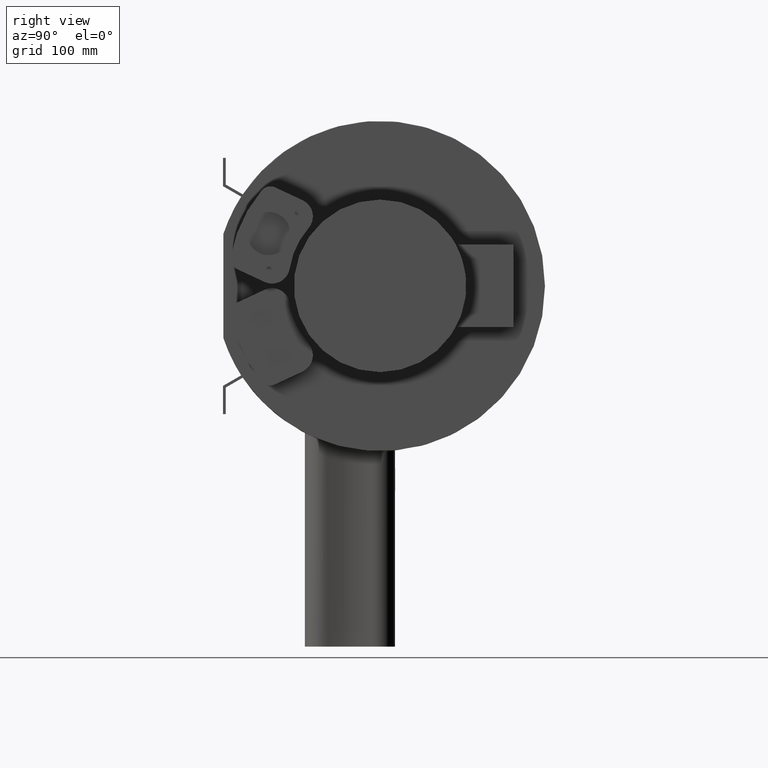
[diagram: clean part render]
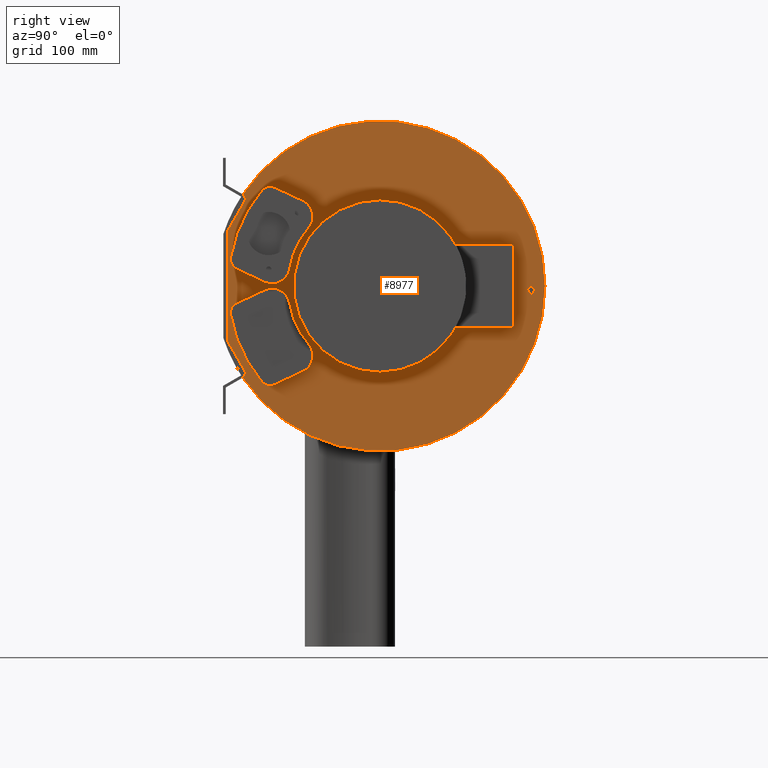
[diagram: same view with one face highlighted and labeled with its STEP entity id]
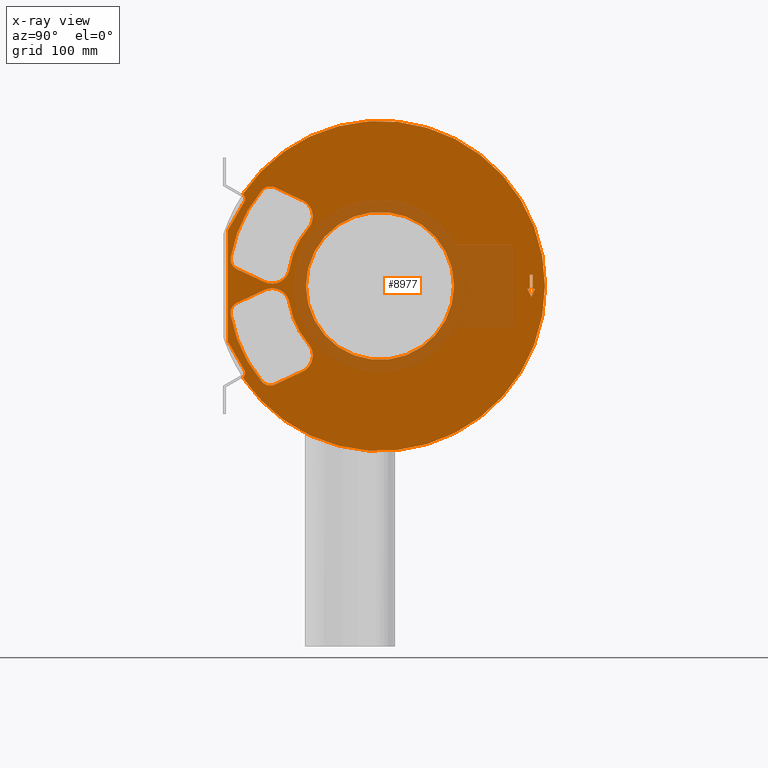
[diagram: x-ray of the same camera — body ghosted, the highlighted face saturated]
A machine part, right view. The second image highlights one B-rep face of the part: STEP entity #8977.
The next image is the same camera in x-ray: the body ghosted, the highlighted face saturated — about 18% of this face is hidden behind the body in this view.
In plain terms, the highlighted planar face has unit normal (1, 0, 0).
Its self-contained STEP definition (entity closure, byte-faithful):
#6507=CARTESIAN_POINT('',(140.5,134.5,-2.494225778216578));
#6508=VERTEX_POINT('',#6507);
#6515=CARTESIAN_POINT('',(140.5,132.5,-2.494225778216556));
#6516=VERTEX_POINT('',#6515);
#6517=CARTESIAN_POINT('',(140.5,132.5,-2.494225778216556));
#6518=DIRECTION('',(0.0,1.0,0.0));
#6519=VECTOR('',#6518,2.0);
#6520=LINE('',#6517,#6519);
#6521=EDGE_CURVE('',#6516,#6508,#6520,.T.);
#6545=CARTESIAN_POINT('',(140.5,134.5,10.000000000000007));
#6546=VERTEX_POINT('',#6545);
#6553=CARTESIAN_POINT('',(140.5,134.5,-2.494225778216578));
#6554=DIRECTION('',(0.0,0.0,1.0));
#6555=VECTOR('',#6554,12.494225778216585);
#6556=LINE('',#6553,#6555);
#6557=EDGE_CURVE('',#6508,#6546,#6556,.T.);
#6576=CARTESIAN_POINT('',(140.5,137.50000000000003,10.000000000000036));
#6577=VERTEX_POINT('',#6576);
#6584=CARTESIAN_POINT('',(140.5,134.5,10.000000000000005));
#6585=DIRECTION('',(0.0,1.0,0.0));
#6586=VECTOR('',#6585,3.0);
#6587=LINE('',#6584,#6586);
#6588=EDGE_CURVE('',#6546,#6577,#6587,.T.);
#6607=CARTESIAN_POINT('',(140.5,137.50000000000003,-2.494225778216564));
#6608=VERTEX_POINT('',#6607);
#6615=CARTESIAN_POINT('',(140.5,137.50000000000003,10.000000000000036));
#6616=DIRECTION('',(0.0,0.0,-1.0));
#6617=VECTOR('',#6616,12.494225778216599);
#6618=LINE('',#6615,#6617);
#6619=EDGE_CURVE('',#6577,#6608,#6618,.T.);
#6638=CARTESIAN_POINT('',(140.5,139.5,-2.494225778216564));
#6639=VERTEX_POINT('',#6638);
#6646=CARTESIAN_POINT('',(140.5,137.50000000000003,-2.494225778216564));
#6647=DIRECTION('',(0.0,1.0,0.0));
#6648=VECTOR('',#6647,2.0);
#6649=LINE('',#6646,#6648);
#6650=EDGE_CURVE('',#6608,#6639,#6649,.T.);
#6669=CARTESIAN_POINT('',(140.5,135.99999999999977,-9.999999999999989));
#6670=VERTEX_POINT('',#6669);
#6677=CARTESIAN_POINT('',(140.5,139.5,-2.494225778216562));
#6678=DIRECTION('',(0.0,-0.422618261740723,-0.906307787036639));
#6679=VECTOR('',#6678,8.281705541033816);
#6680=LINE('',#6677,#6679);
#6681=EDGE_CURVE('',#6639,#6670,#6680,.T.);
#6699=CARTESIAN_POINT('',(140.5,135.99999999999977,-9.999999999999993));
#6700=DIRECTION('',(0.0,-0.422618261740678,0.90630778703666));
#6701=VECTOR('',#6700,8.281705541033631);
#6702=LINE('',#6699,#6701);
#6703=EDGE_CURVE('',#6670,#6516,#6702,.T.);
#8339=CARTESIAN_POINT('',(140.5,-121.74647922241901,75.687822173508835));
#8340=VERTEX_POINT('',#8339);
#8341=CARTESIAN_POINT('',(140.5,-136.5,50.133974596215467));
#8342=VERTEX_POINT('',#8341);
#8343=CARTESIAN_POINT('',(140.5,-121.74647922241901,75.687822173508835));
#8344=DIRECTION('',(0.0,-0.5,-0.866025403784439));
#8345=VECTOR('',#8344,29.507041555161997);
#8346=LINE('',#8343,#8345);
#8347=EDGE_CURVE('',#8340,#8342,#8346,.T.);
#8638=CARTESIAN_POINT('',(140.5,-123.28405769813565,82.335312093188548));
#8639=VERTEX_POINT('',#8638);
#8662=CARTESIAN_POINT('',(140.5,-126.0766062413412,78.187822173508835));
#8663=DIRECTION('',(-1.0,0.0,0.0));
#8664=DIRECTION('',(0.0,0.866025403784438,-0.5));
#8665=AXIS2_PLACEMENT_3D('',#8662,#8663,#8664);
#8666=CIRCLE('',#8665,5.000000000000013);
#8667=EDGE_CURVE('',#8639,#8340,#8666,.T.);
#8702=CARTESIAN_POINT('',(140.5,-123.28405769813565,-82.335312093188548));
#8703=VERTEX_POINT('',#8702);
#8704=CARTESIAN_POINT('',(140.5,0.0,0.0));
#8705=DIRECTION('',(1.0,0.0,0.0));
#8706=DIRECTION('',(0.0,1.0,0.0));
#8707=AXIS2_PLACEMENT_3D('',#8704,#8705,#8706);
#8708=CIRCLE('',#8707,148.25);
#8709=EDGE_CURVE('',#8703,#8639,#8708,.T.);
#8780=CARTESIAN_POINT('',(140.5,107.375,0.0));
#8781=DIRECTION('',(1.0,0.0,0.0));
#8782=DIRECTION('',(0.0,0.0,-1.0));
#8783=AXIS2_PLACEMENT_3D('',#8780,#8781,#8782);
#8784=PLANE('',#8783);
#8785=CARTESIAN_POINT('',(140.5,-136.5,-50.133974596215467));
#8786=VERTEX_POINT('',#8785);
#8787=CARTESIAN_POINT('',(140.5,-136.5,50.133974596215467));
#8788=DIRECTION('',(0.0,0.0,-1.0));
#8789=VECTOR('',#8788,100.26794919243093);
#8790=LINE('',#8787,#8789);
#8791=EDGE_CURVE('',#8342,#8786,#8790,.T.);
#8792=ORIENTED_EDGE('',*,*,#8791,.T.);
#8793=CARTESIAN_POINT('',(140.5,-121.74647922241901,-75.687822173508835));
#8794=VERTEX_POINT('',#8793);
#8795=CARTESIAN_POINT('',(140.5,-136.5,-50.133974596215452));
#8796=DIRECTION('',(0.0,0.5,-0.866025403784439));
#8797=VECTOR('',#8796,29.507041555161997);
#8798=LINE('',#8795,#8797);
#8799=EDGE_CURVE('',#8786,#8794,#8798,.T.);
#8800=ORIENTED_EDGE('',*,*,#8799,.T.);
#8801=CARTESIAN_POINT('',(140.5,-126.0766062413412,-78.187822173508835));
#8802=DIRECTION('',(-1.0,0.0,0.0));
#8803=DIRECTION('',(0.0,0.866025403784438,0.5));
#8804=AXIS2_PLACEMENT_3D('',#8801,#8802,#8803);
#8805=CIRCLE('',#8804,5.000000000000013);
#8806=EDGE_CURVE('',#8794,#8703,#8805,.T.);
#8807=ORIENTED_EDGE('',*,*,#8806,.T.);
#8808=ORIENTED_EDGE('',*,*,#8709,.T.);
#8809=ORIENTED_EDGE('',*,*,#8667,.T.);
#8810=ORIENTED_EDGE('',*,*,#8347,.T.);
#8811=EDGE_LOOP('',(#8792,#8800,#8807,#8808,#8809,#8810));
#8812=FACE_OUTER_BOUND('',#8811,.T.);
#8813=ORIENTED_EDGE('',*,*,#6521,.T.);
#8814=ORIENTED_EDGE('',*,*,#6557,.T.);
#8815=ORIENTED_EDGE('',*,*,#6588,.T.);
#8816=ORIENTED_EDGE('',*,*,#6619,.T.);
#8817=ORIENTED_EDGE('',*,*,#6650,.T.);
#8818=ORIENTED_EDGE('',*,*,#6681,.T.);
#8819=ORIENTED_EDGE('',*,*,#6703,.T.);
#8820=EDGE_LOOP('',(#8813,#8814,#8815,#8816,#8817,#8818,#8819));
#8821=FACE_BOUND('',#8820,.T.);
#8822=CARTESIAN_POINT('',(140.5,66.5,0.0));
#8823=VERTEX_POINT('',#8822);
#8824=CARTESIAN_POINT('',(140.5,0.0,0.0));
#8825=DIRECTION('',(1.0,0.0,0.0));
#8826=DIRECTION('',(0.0,1.0,0.0));
#8827=AXIS2_PLACEMENT_3D('',#8824,#8825,#8826);
#8828=CIRCLE('',#8827,66.5);
#8829=EDGE_CURVE('',#8823,#8823,#8828,.T.);
#8830=ORIENTED_EDGE('',*,*,#8829,.F.);
#8831=EDGE_LOOP('',(#8830));
#8832=FACE_BOUND('',#8831,.T.);
#8833=CARTESIAN_POINT('',(140.5,-81.145755022746073,-15.55809849130509));
#8834=VERTEX_POINT('',#8833);
#8835=CARTESIAN_POINT('',(140.5,-64.202604711141632,-51.89280158977445));
#8836=VERTEX_POINT('',#8835);
#8837=CARTESIAN_POINT('',(140.5,-10.0,-4.5));
#8838=DIRECTION('',(1.0,0.0,0.0));
#8839=DIRECTION('',(0.0,-0.988135486427029,-0.153584701268126));
#8840=AXIS2_PLACEMENT_3D('',#8837,#8838,#8839);
#8841=CIRCLE('',#8840,72.0);
#8842=EDGE_CURVE('',#8834,#8836,#8841,.T.);
#8843=ORIENTED_EDGE('',*,*,#8842,.T.);
#8844=CARTESIAN_POINT('',(140.5,-69.485735792433033,-76.92545986897737));
#8845=VERTEX_POINT('',#8844);
#8846=CARTESIAN_POINT('',(140.5,-76.247627980284221,-62.424535276390998));
#8847=DIRECTION('',(-1.0,0.0,0.0));
#8848=DIRECTION('',(0.0,-0.4226182617407,0.90630778703665));
#8849=AXIS2_PLACEMENT_3D('',#8846,#8847,#8848);
#8850=CIRCLE('',#8849,16.0);
#8851=EDGE_CURVE('',#8836,#8845,#8850,.T.);
#8852=ORIENTED_EDGE('',*,*,#8851,.T.);
#8853=CARTESIAN_POINT('',(140.5,-94.316565862516313,-88.504266089002641));
#8854=VERTEX_POINT('',#8853);
#8855=CARTESIAN_POINT('',(140.5,-69.485735792433047,-76.925459868977356));
#8856=DIRECTION('',(0.0,-0.906307787036649,-0.4226182617407));
#8857=VECTOR('',#8856,27.397789608839766);
#8858=LINE('',#8855,#8857);
#8859=EDGE_CURVE('',#8845,#8854,#8858,.T.);
#8860=ORIENTED_EDGE('',*,*,#8859,.T.);
#8861=CARTESIAN_POINT('',(140.5,-106.17574403853736,-85.901635478863398));
#8862=VERTEX_POINT('',#8861);
#8863=CARTESIAN_POINT('',(140.5,-98.54274847992329,-79.441188218636157));
#8864=DIRECTION('',(-1.0,0.0,0.0));
#8865=DIRECTION('',(0.0,0.763299555861408,0.646044726022725));
#8866=AXIS2_PLACEMENT_3D('',#8863,#8864,#8865);
#8867=CIRCLE('',#8866,10.0);
#8868=EDGE_CURVE('',#8854,#8862,#8867,.T.);
#8869=ORIENTED_EDGE('',*,*,#8868,.T.);
#8870=CARTESIAN_POINT('',(140.5,-134.17784713973583,-25.850931589521164));
#8871=VERTEX_POINT('',#8870);
#8872=CARTESIAN_POINT('',(140.5,-10.0,-4.5));
#8873=DIRECTION('',(-1.0,0.0,0.0));
#8874=DIRECTION('',(0.0,0.985538469362983,0.169451838012073));
#8875=AXIS2_PLACEMENT_3D('',#8872,#8873,#8874);
#8876=CIRCLE('',#8875,126.00000000000001);
#8877=EDGE_CURVE('',#8862,#8871,#8876,.T.);
#8878=ORIENTED_EDGE('',*,*,#8877,.T.);
#8879=CARTESIAN_POINT('',(140.5,-128.54864506351299,-15.093335339033962));
#8880=VERTEX_POINT('',#8879);
#8881=CARTESIAN_POINT('',(140.5,-124.32246244610599,-24.156413209400434));
#8882=DIRECTION('',(-1.0,0.0,0.0));
#8883=DIRECTION('',(0.0,0.4226182617407,-0.90630778703665));
#8884=AXIS2_PLACEMENT_3D('',#8881,#8882,#8883);
#8885=CIRCLE('',#8884,10.0);
#8886=EDGE_CURVE('',#8871,#8880,#8885,.T.);
#8887=ORIENTED_EDGE('',*,*,#8886,.T.);
#8888=CARTESIAN_POINT('',(140.5,-103.71781499342974,-3.514529119008718));
#8889=VERTEX_POINT('',#8888);
#8890=CARTESIAN_POINT('',(140.5,-128.54864506351296,-15.093335339033963));
#8891=DIRECTION('',(0.0,0.90630778703665,0.4226182617407));
#8892=VECTOR('',#8891,27.39778960883968);
#8893=LINE('',#8890,#8892);
#8894=EDGE_CURVE('',#8880,#8889,#8893,.T.);
#8895=ORIENTED_EDGE('',*,*,#8894,.T.);
#8896=CARTESIAN_POINT('',(140.5,-96.955922805578552,-18.015453711595114));
#8897=DIRECTION('',(-1.0,0.0,0.0));
#8898=DIRECTION('',(0.0,-0.988135486427029,-0.153584701268126));
#8899=AXIS2_PLACEMENT_3D('',#8896,#8897,#8898);
#8900=CIRCLE('',#8899,15.999999999999998);
#8901=EDGE_CURVE('',#8889,#8834,#8900,.T.);
#8902=ORIENTED_EDGE('',*,*,#8901,.T.);
#8903=EDGE_LOOP('',(#8843,#8852,#8860,#8869,#8878,#8887,#8895,#8902));
#8904=FACE_BOUND('',#8903,.T.);
#8905=CARTESIAN_POINT('',(140.5,-81.145755022746073,15.55809849130509));
#8906=VERTEX_POINT('',#8905);
#8907=CARTESIAN_POINT('',(140.5,-103.71781499342974,3.514529119008718));
#8908=VERTEX_POINT('',#8907);
#8909=CARTESIAN_POINT('',(140.5,-96.955922805578552,18.015453711595114));
#8910=DIRECTION('',(-1.0,0.0,0.0));
#8911=DIRECTION('',(0.0,-0.422618261740699,-0.90630778703665));
#8912=AXIS2_PLACEMENT_3D('',#8909,#8910,#8911);
#8913=CIRCLE('',#8912,15.999999999999998);
#8914=EDGE_CURVE('',#8906,#8908,#8913,.T.);
#8915=ORIENTED_EDGE('',*,*,#8914,.T.);
#8916=CARTESIAN_POINT('',(140.5,-128.54864506351299,15.093335339033962));
#8917=VERTEX_POINT('',#8916);
#8918=CARTESIAN_POINT('',(140.5,-103.71781499342976,3.514529119008721));
#8919=DIRECTION('',(0.0,-0.90630778703665,0.4226182617407));
#8920=VECTOR('',#8919,27.397789608839712);
#8921=LINE('',#8918,#8920);
#8922=EDGE_CURVE('',#8908,#8917,#8921,.T.);
#8923=ORIENTED_EDGE('',*,*,#8922,.T.);
#8924=CARTESIAN_POINT('',(140.5,-134.17784713973583,25.850931589521164));
#8925=VERTEX_POINT('',#8924);
#8926=CARTESIAN_POINT('',(140.5,-124.32246244610599,24.156413209400434));
#8927=DIRECTION('',(-1.0,0.0,0.0));
#8928=DIRECTION('',(0.0,-0.985538469362983,0.169451838012073));
#8929=AXIS2_PLACEMENT_3D('',#8926,#8927,#8928);
#8930=CIRCLE('',#8929,10.0);
#8931=EDGE_CURVE('',#8917,#8925,#8930,.T.);
#8932=ORIENTED_EDGE('',*,*,#8931,.T.);
#8933=CARTESIAN_POINT('',(140.5,-106.17574403853736,85.901635478863398));
#8934=VERTEX_POINT('',#8933);
#8935=CARTESIAN_POINT('',(140.5,-10.0,4.5));
#8936=DIRECTION('',(-1.0,0.0,0.0));
#8937=DIRECTION('',(0.0,-0.763299555861407,0.646044726022725));
#8938=AXIS2_PLACEMENT_3D('',#8935,#8936,#8937);
#8939=CIRCLE('',#8938,126.00000000000003);
#8940=EDGE_CURVE('',#8925,#8934,#8939,.T.);
#8941=ORIENTED_EDGE('',*,*,#8940,.T.);
#8942=CARTESIAN_POINT('',(140.5,-94.316565862516313,88.504266089002641));
#8943=VERTEX_POINT('',#8942);
#8944=CARTESIAN_POINT('',(140.5,-98.54274847992329,79.441188218636157));
#8945=DIRECTION('',(-1.0,0.0,0.0));
#8946=DIRECTION('',(0.0,0.422618261740699,0.90630778703665));
#8947=AXIS2_PLACEMENT_3D('',#8944,#8945,#8946);
#8948=CIRCLE('',#8947,10.0);
#8949=EDGE_CURVE('',#8934,#8943,#8948,.T.);
#8950=ORIENTED_EDGE('',*,*,#8949,.T.);
#8951=CARTESIAN_POINT('',(140.5,-69.485735792433033,76.92545986897737));
#8952=VERTEX_POINT('',#8951);
#8953=CARTESIAN_POINT('',(140.5,-94.316565862516342,88.504266089002641));
#8954=DIRECTION('',(0.0,0.90630778703665,-0.4226182617407));
#8955=VECTOR('',#8954,27.39778960883978);
#8956=LINE('',#8953,#8955);
#8957=EDGE_CURVE('',#8943,#8952,#8956,.T.);
#8958=ORIENTED_EDGE('',*,*,#8957,.T.);
#8959=CARTESIAN_POINT('',(140.5,-64.202604711141632,51.89280158977445));
#8960=VERTEX_POINT('',#8959);
#8961=CARTESIAN_POINT('',(140.5,-76.247627980284221,62.424535276390998));
#8962=DIRECTION('',(-1.0,0.0,0.0));
#8963=DIRECTION('',(0.0,0.752813954321411,-0.658233355413534));
#8964=AXIS2_PLACEMENT_3D('',#8961,#8962,#8963);
#8965=CIRCLE('',#8964,16.0);
#8966=EDGE_CURVE('',#8952,#8960,#8965,.T.);
#8967=ORIENTED_EDGE('',*,*,#8966,.T.);
#8968=CARTESIAN_POINT('',(140.5,-10.0,4.5));
#8969=DIRECTION('',(1.0,0.0,0.0));
#8970=DIRECTION('',(0.0,0.752813954321411,-0.658233355413534));
#8971=AXIS2_PLACEMENT_3D('',#8968,#8969,#8970);
#8972=CIRCLE('',#8971,71.999999999999986);
#8973=EDGE_CURVE('',#8960,#8906,#8972,.T.);
#8974=ORIENTED_EDGE('',*,*,#8973,.T.);
#8975=EDGE_LOOP('',(#8915,#8923,#8932,#8941,#8950,#8958,#8967,#8974));
#8976=FACE_BOUND('',#8975,.T.);
#8977=ADVANCED_FACE('',(#8812,#8821,#8832,#8904,#8976),#8784,.T.);